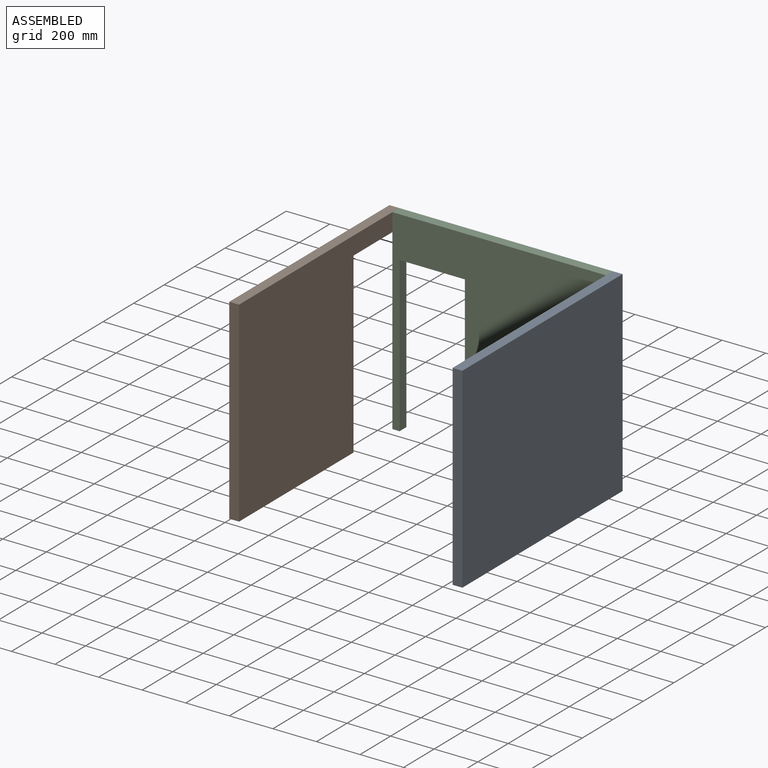
[diagram: assembled view]
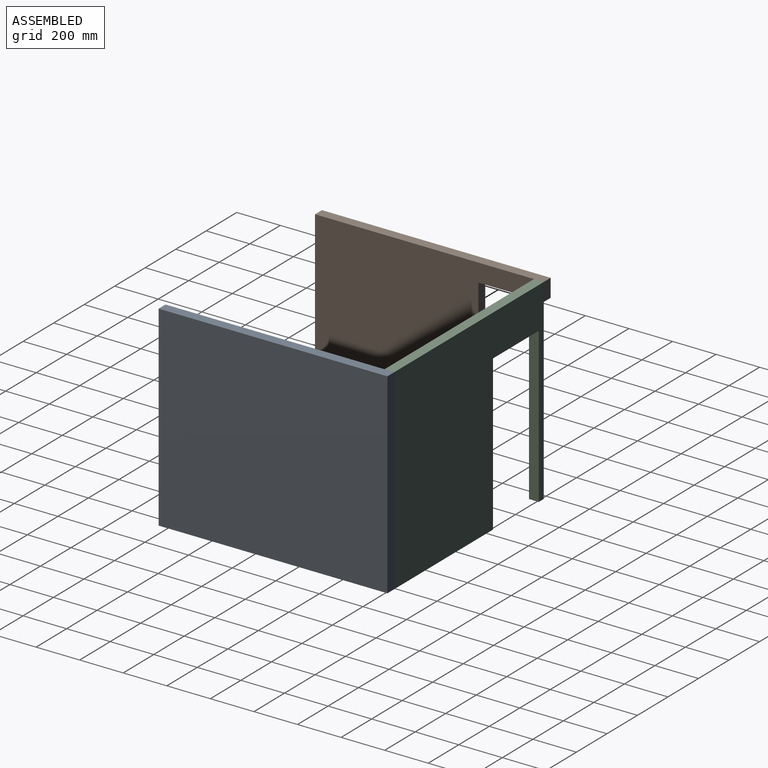
[diagram: assembled view, second angle]
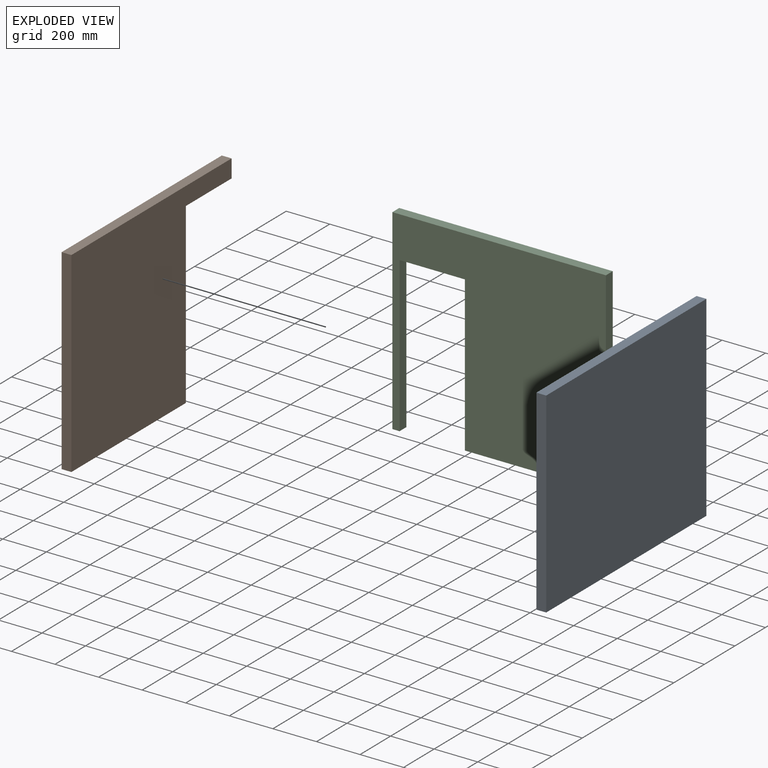
[diagram: exploded view]
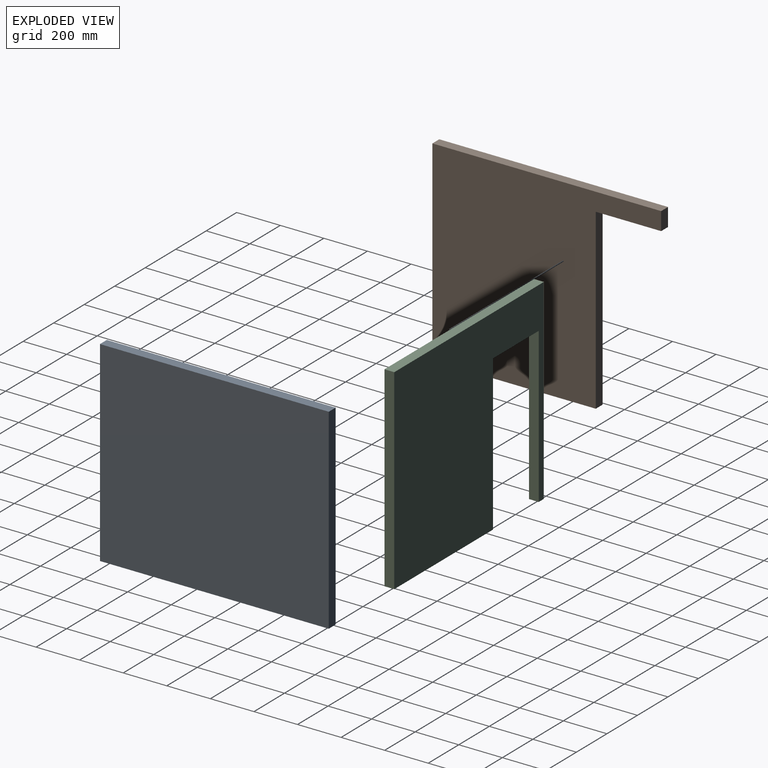
[diagram: exploded view, second angle]
ASSEMBLY  parts=3 mates=2
PART A: 6 faces, bbox 1050x45x900 mm
  f0: plane 900x45mm, normal (1,0,0), area 40500mm2, adj f1,f3,f4,f5
  f1: plane 1050x45mm, normal (0,0,1), area 47250mm2, adj f0,f2,f4,f5
  f2: plane 900x45mm, normal (-1,0,0), area 40500mm2, adj f1,f3,f4,f5
  f3: plane 1050x45mm, normal (0,0,-1), area 47250mm2, adj f0,f2,f4,f5
  f4: plane 1050x900mm, normal (0,-1,0), area 945000mm2, adj f0,f1,f2,f3
  f5: plane 1050x900mm, normal (0,1,0), area 945000mm2, adj f0,f1,f2,f3
PART B: 8 faces, bbox 1050x45x900 mm
  f0: plane 1050x45mm, normal (0,0,1), area 47250mm2, adj f1,f4,f5,f7
  f1: plane 900x45mm, normal (-1,0,0), area 40500mm2, adj f0,f2,f4,f5
  f2: plane 750x45mm, normal (0,0,-1), area 33750mm2, adj f1,f3,f4,f5
  f3: plane 817x45mm, normal (1,0,0), area 36765mm2, adj f2,f4,f5,f6
  f4: plane 1050x900mm, normal (0,-1,0), area 699900mm2, adj f0,f1,f2,f3,f6,f7
  f5: plane 1050x900mm, normal (0,1,0), area 699900mm2, adj f0,f1,f2,f3,f6,f7
  f6: plane 300x45mm, normal (0,0,-1), area 13500mm2, adj f3,f4,f5,f7
  f7: plane 83x45mm, normal (1,0,0), area 3735mm2, adj f0,f4,f5,f6
PART C: 10 faces, bbox 980x45x900 mm
  f0: plane 45x33mm, normal (0,0,-1), area 1485mm2, adj f1,f7,f8,f9
  f1: plane 710x45mm, normal (1,0,0), area 31950mm2, adj f0,f2,f8,f9
  f2: plane 300x45mm, normal (0,0,-1), area 13500mm2, adj f1,f3,f8,f9
  f3: plane 710x45mm, normal (-1,0,0), area 31950mm2, adj f2,f4,f8,f9
  f4: plane 647x45mm, normal (0,0,-1), area 29115mm2, adj f3,f5,f8,f9
  f5: plane 900x45mm, normal (1,0,0), area 40500mm2, adj f4,f6,f8,f9
  f6: plane 980x45mm, normal (0,0,1), area 44100mm2, adj f5,f7,f8,f9
  f7: plane 900x45mm, normal (-1,0,0), area 40500mm2, adj f0,f6,f8,f9
  f8: plane 980x900mm, normal (0,-1,0), area 669000mm2, adj f0,f1,f2,f3,f4,f5,f6,f7
  f9: plane 980x900mm, normal (0,1,0), area 669000mm2, adj f0,f1,f2,f3,f4,f5,f6,f7
PLACE A rot(axis=(0,0,-1),90deg) t=(473.91,-485,-196.4)mm
PLACE B rot(axis=(0,0,1),90deg) t=(-551.09,-635,-214.72)mm
PLACE C t=(-38.59,17.5,-214.72)mm
MATE fastened C.f7 <-> B.f4  axis (-1,0,0) through (-528.59,40,235.28)mm
MATE fastened C.f5 <-> A.f4  axis (1,0,0) through (451.41,40,235.28)mm
